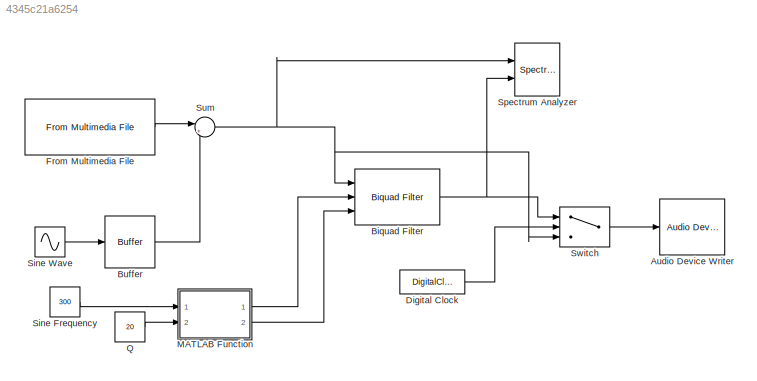
MODEL slx_4345c21a6254
KIND model
CONFIG AbsTol = auto
CONFIG EnableMultiTasking = off
CONFIG FixedStep = auto
CONFIG MaxStep = auto
CONFIG MinStep = auto
CONFIG RelTol = 1e-3
CONFIG SampleTimeConstraint = Unconstrained
CONFIG Solver = VariableStepAuto
CONFIG SolverName = VariableStepAuto
CONFIG StartTime = 0.0
CONFIG StopTime = 10.0
BLOCK [Reference] Audio Device Writer  REF=dspsnks4/Audio Device
Writer
  Ports = [1]
  SourceBlock = dspsnks4/Audio Device\nWriter
  SourceProductBaseCode = DS
  SourceProductName = DSP System Toolbox
  SourceType = Audio Device Writer
BLOCK [Reference] Biquad Filter  REF=dsparch4/Biquad Filter
  Ports = [3, 1]
  SourceBlock = dsparch4/Biquad Filter
  SourceProductBaseCode = DS
  SourceProductName = DSP System Toolbox
  SourceType = Biquad Filter
  UserDataPersistent = on
BLOCK [Buffer] Buffer
  N = 1024
  OutputFrames = off
BLOCK [DigitalClock] Digital Clock
  SampleTime = 1024/44100
BLOCK [Reference] From Multimedia File  REF=dspvision/From Multimedia File
  Ports = [0, 1]
  SourceBlock = dspvision/From Multimedia File
  SourceProductBaseCode = VP
  SourceProductName = Computer Vision System Toolbox
  SourceType = From Multimedia File
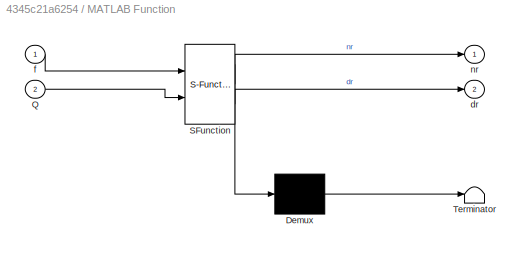
BLOCK [SubSystem] MATLAB Function
  ErrorFcn = Stateflow.Translate.translate
  PermitHierarchicalResolution = ExplicitOnly
  Ports = [2, 2]
  RequestExecContextInheritance = off
  SFBlockType = MATLAB Function
  TreatAsAtomicUnit = on
BLOCK [Demux] MATLAB Function/ Demux 
  Outputs = 1
  Ports = [1, 1]
BLOCK [S-Function] MATLAB Function/ SFunction 
  EnableBusSupport = on
  FunctionName = sf_sfun
  PortCounts = [2 3]
  Ports = [2, 3]
  SFcnIsStateOwnerBlock = off
  SFunctionDeploymentMode = off
  Tag = Stateflow S-Function audio_sine_notch 2
BLOCK [Terminator] MATLAB Function/ Terminator 
BLOCK [Inport] MATLAB Function/Q
  IconDisplay = Port number
  Port = 2
BLOCK [Outport] MATLAB Function/dr
  IconDisplay = Port number
  Port = 2
BLOCK [Inport] MATLAB Function/f
  IconDisplay = Port number
BLOCK [Outport] MATLAB Function/nr
  IconDisplay = Port number
BLOCK [Constant] Q
  Value = 20
BLOCK [Constant] Sine Frequency
  Value = 300
BLOCK [Sin] Sine Wave
  Amplitude = 0.5
  Ports = [0, 1]
  SampleTime = 1/44100
  Samples = 44100/300
  SineType = Sample based
BLOCK [SpectrumAnalyzer] Spectrum Analyzer
  NumInputPorts = 2
  Ports = [2]
  ScopeSpecificationString = spbscopes.SpectrumAnalyzerBlockCfg('CurrentConfiguration', extmgr.ConfigurationSet(extmgr.Configuration('Core','General UI',true),extmgr.Configuration('Core','Source UI',true),extmgr.Configuration('Sources','WiredSimulink',true),extmgr.Configuration('Visuals','Spectrum',true,'AxesProperties',struct('Color',{[0 0 0],[0 0 0]},'XColor',{[0.686274509803922 0.686274509803922 0.686274509803922],[0.68627...<+2915ch>
BLOCK [Sum] Sum
  IconShape = round
  InputSameDT = off
  Inputs = |++
  OutDataTypeStr = Inherit: Inherit via internal rule
  Ports = [2, 1]
  SaturateOnIntegerOverflow = off
BLOCK [Switch] Switch
  Criteria = u2 > Threshold
  InputSameDT = off
  SaturateOnIntegerOverflow = off
  Threshold = 3
NET Biquad Filter:1 -> Spectrum Analyzer:2, Switch:1
LINE Buffer:1 -> Sum:2
LINE Digital Clock:1 -> Switch:2
LINE From Multimedia File:1 -> Sum:1
LINE MATLAB Function:1 -> Biquad Filter:2
LINE MATLAB Function:2 -> Biquad Filter:3
LINE Q:1 -> MATLAB Function:2
LINE Sine Frequency:1 -> MATLAB Function:1
LINE Sine Wave:1 -> Buffer:1
NET Sum:1 -> Biquad Filter:1, Spectrum Analyzer:1, Switch:3
LINE Switch:1 -> Audio Device Writer:1
note: NET lines group one-source signal fan-out (src -> all destinations, sorted); 1:1 wires keep LINE
CHART MATLAB Function states=1 transitions=1
  STATE_LABEL 'eML_blk_kernel()'
  STATE_LABEL "SCRIPT:\nfunction [nr, dr] = iirnotchS(f,Q)\n%#codegen\nlfo = f;\nFs = 44100;\nWo = (2*lfo/Fs)*pi;\nBW = (2*lfo/Fs/Q)*pi;\nAb = 3;\nGb = 10^(-Ab/20);\nbeta = (sqrt(1-Gb.^2)/Gb)*tan(BW/2);\ngain = 1/(1+beta);\nb = gain*[1 -2*cos(Wo) 1];\na = [1 -2*gain*cos(Wo) (2*gain-1)];\ndr = a(2:end)';\nnr = b';\nend"
